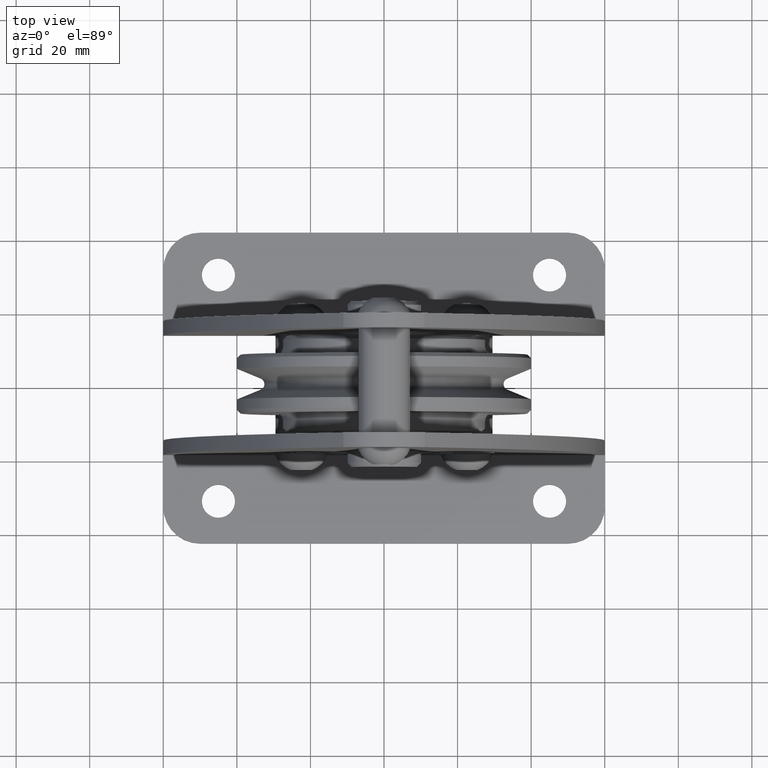
[diagram: clean part render]
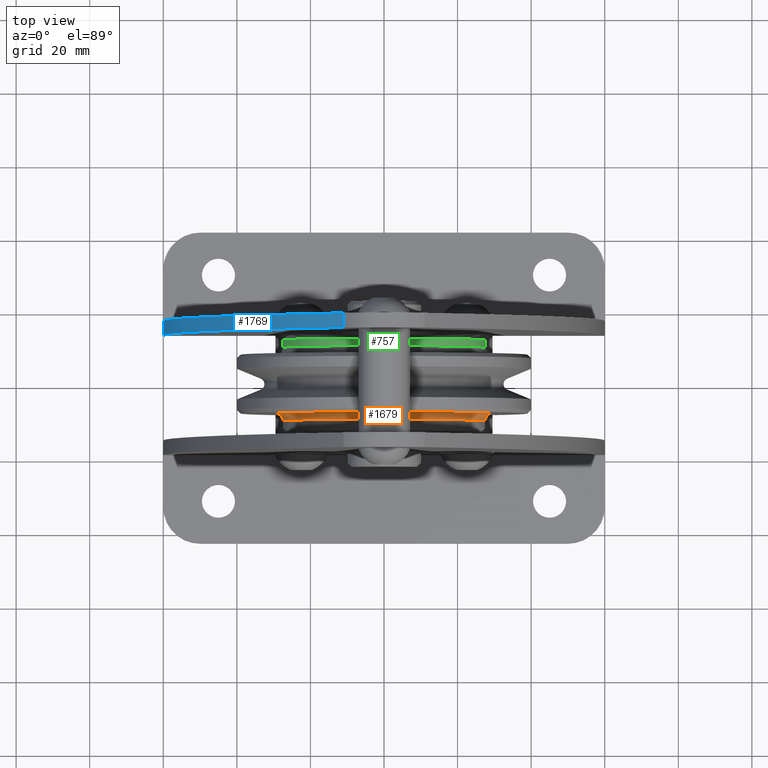
[diagram: same view with three faces highlighted in distinct colors, each labeled with its STEP entity id]
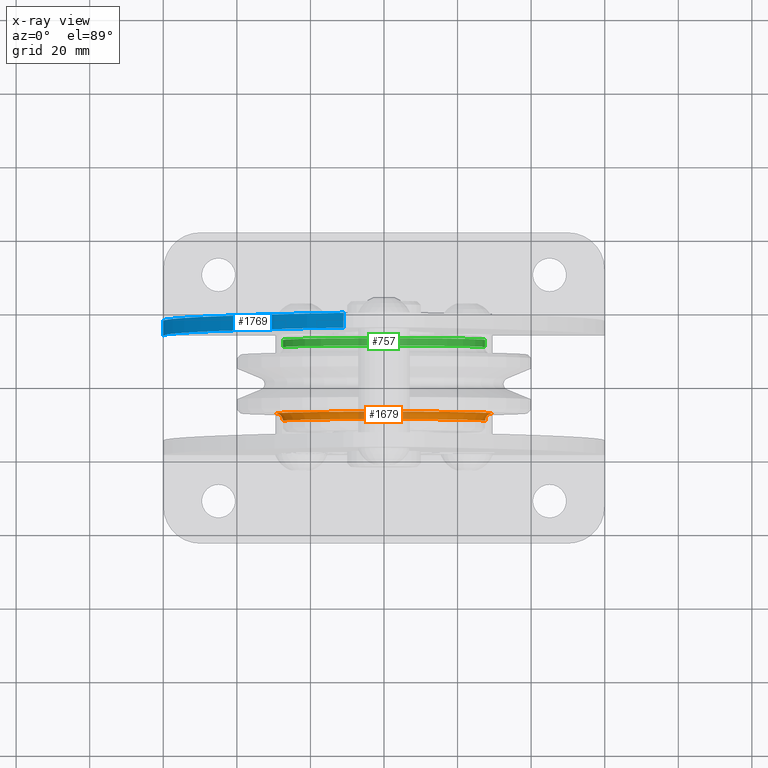
[diagram: x-ray of the same camera — body ghosted, the three highlighted faces saturated]
A machine part, top view with three faces highlighted in distinct colors.
The next image is the same camera in x-ray (body ghosted, the three faces saturated) — at least one of them is partly hidden behind the body in this view.
Their STEP definitions:

[orange] entity #1679 — the highlighted toroidal blend (fillet) surface has major radius 29.5 mm and minor (blend) radius 2 mm.
#1679=ADVANCED_FACE('',(#3561),#3562,.F.);
#3561=FACE_OUTER_BOUND('',#5631,.T.);
#3562=TOROIDAL_SURFACE('',#5632,29.5,2.0);
#5631=EDGE_LOOP('',(#11000,#11001,#11002,#11003));
#5632=AXIS2_PLACEMENT_3D('',#11004,#11005,#11006);
#11000=ORIENTED_EDGE('',*,*,#12580,.T.);
#11001=ORIENTED_EDGE('',*,*,#12577,.F.);
#11002=ORIENTED_EDGE('',*,*,#12582,.T.);
#11003=ORIENTED_EDGE('',*,*,#14353,.T.);
#11004=CARTESIAN_POINT('',(0.0,-10.0,0.0));
#11005=DIRECTION('',(0.0,-1.0,0.0));
#11006=DIRECTION('',(1.0,0.0,0.0));
#12577=EDGE_CURVE('',#15184,#15186,#15187,.T.);
#12580=EDGE_CURVE('',#15190,#15186,#15191,.T.);
#12582=EDGE_CURVE('',#15184,#15192,#15194,.T.);
#14353=EDGE_CURVE('',#15192,#15190,#17823,.T.);
#15184=VERTEX_POINT('',#19724);
#15186=VERTEX_POINT('',#19727);
#15187=CIRCLE('',#19728,27.5);
#15190=VERTEX_POINT('',#19732);
#15191=CIRCLE('',#19733,2.0);
#15192=VERTEX_POINT('',#19734);
#15194=CIRCLE('',#19736,2.0);
#17823=CIRCLE('',#25715,29.5);
#19724=CARTESIAN_POINT('',(27.5,-10.0,0.0));
#19727=CARTESIAN_POINT('',(-27.5,-10.0,3.36777869765522E-015));
#19728=AXIS2_PLACEMENT_3D('',#26819,#26820,#26821);
#19732=CARTESIAN_POINT('',(-29.5,-8.0,3.61270805748469E-015));
#19733=AXIS2_PLACEMENT_3D('',#26823,#26824,#26825);
#19734=CARTESIAN_POINT('',(29.5,-8.0,0.0));
#19736=AXIS2_PLACEMENT_3D('',#26829,#26830,#26831);
#25715=AXIS2_PLACEMENT_3D('',#28770,#28771,#28772);
#26819=CARTESIAN_POINT('',(0.0,-10.0,0.0));
#26820=DIRECTION('',(0.0,-1.0,0.0));
#26821=DIRECTION('',(1.0,0.0,0.0));
#26823=CARTESIAN_POINT('',(-29.5,-10.0,3.61270805748469E-015));
#26824=DIRECTION('',(-1.22464679914735E-016,0.0,-1.0));
#26825=DIRECTION('',(-1.0,0.0,1.22464679914735E-016));
#26829=CARTESIAN_POINT('',(29.5,-10.0,-3.61270805748469E-015));
#26830=DIRECTION('',(-1.22464679914735E-016,-0.0,-1.0));
#26831=DIRECTION('',(1.0,0.0,-1.22464679914735E-016));
#28770=CARTESIAN_POINT('',(0.0,-8.0,0.0));
#28771=DIRECTION('',(0.0,-1.0,0.0));
#28772=DIRECTION('',(1.0,0.0,0.0));

[blue] entity #1769 — the highlighted cylindrical surface (partial cylindrical patch) has radius 185 mm, axis along (0, 1, 0).
#1769=ADVANCED_FACE('',(#3713),#3714,.T.);
#3713=FACE_OUTER_BOUND('',#5783,.T.);
#3714=CYLINDRICAL_SURFACE('',#5784,184.9999999343);
#5783=EDGE_LOOP('',(#11403,#11404,#11405,#11406));
#5784=AXIS2_PLACEMENT_3D('',#11407,#11408,#11409);
#11403=ORIENTED_EDGE('',*,*,#14443,.T.);
#11404=ORIENTED_EDGE('',*,*,#14479,.F.);
#11405=ORIENTED_EDGE('',*,*,#14480,.T.);
#11406=ORIENTED_EDGE('',*,*,#14476,.T.);
#11407=CARTESIAN_POINT('',(124.9999999343,14.25,-60.9999999808002));
#11408=DIRECTION('',(0.0,1.0,0.0));
#11409=DIRECTION('',(-1.0,0.0,-1.02973620057834E-010));
#14443=EDGE_CURVE('',#17931,#17929,#17932,.T.);
#14476=EDGE_CURVE('',#17979,#17931,#17980,.T.);
#14479=EDGE_CURVE('',#17983,#17929,#17984,.T.);
#14480=EDGE_CURVE('',#17983,#17979,#17985,.T.);
#17929=VERTEX_POINT('',#25842);
#17931=VERTEX_POINT('',#25845);
#17932=CIRCLE('',#25846,184.9999999343);
#17979=VERTEX_POINT('',#25909);
#17980=LINE('',#25910,#25911);
#17983=VERTEX_POINT('',#25914);
#17984=LINE('',#25915,#25916);
#17985=CIRCLE('',#25917,184.9999999343);
#25842=CARTESIAN_POINT('',(-60.00000927,18.25,-61.0));
#25845=CARTESIAN_POINT('',(-11.029411760013,18.25,64.3834085300156));
#25846=AXIS2_PLACEMENT_3D('',#28888,#28889,#28890);
#25909=CARTESIAN_POINT('',(-11.029411760013,14.25,64.3834085300156));
#25910=CARTESIAN_POINT('',(-11.029411760013,14.25,64.3834085300156));
#25911=VECTOR('',#28928,1.0);
#25914=CARTESIAN_POINT('',(-60.0,14.25,-61.0));
#25915=CARTESIAN_POINT('',(-60.0,14.25,-61.0));
#25916=VECTOR('',#28932,1.0);
#25917=AXIS2_PLACEMENT_3D('',#28933,#28934,#28935);
#28888=CARTESIAN_POINT('',(124.9999999343,18.25,-60.9999999808002));
#28889=DIRECTION('',(0.0,-1.0,-0.0));
#28890=DIRECTION('',(-1.0,0.0,-1.02973620057834E-010));
#28928=DIRECTION('',(0.0,1.0,0.0));
#28932=DIRECTION('',(0.0,1.0,0.0));
#28933=CARTESIAN_POINT('',(124.9999999343,14.25,-60.9999999808002));
#28934=DIRECTION('',(0.0,1.0,0.0));
#28935=DIRECTION('',(-1.0,0.0,-1.02973620057834E-010));

[green] entity #757 — the highlighted cylindrical surface (partial cylindrical patch) has radius 27.5 mm, axis along (0, -1, 0).
#757=ADVANCED_FACE('',(#2128),#2129,.T.);
#2128=FACE_OUTER_BOUND('',#4198,.T.);
#2129=CYLINDRICAL_SURFACE('',#4199,27.5);
#4198=EDGE_LOOP('',(#6471,#6472,#6473,#6474));
#4199=AXIS2_PLACEMENT_3D('',#6475,#6476,#6477);
#6471=ORIENTED_EDGE('',*,*,#12562,.F.);
#6472=ORIENTED_EDGE('',*,*,#12563,.T.);
#6473=ORIENTED_EDGE('',*,*,#12564,.F.);
#6474=ORIENTED_EDGE('',*,*,#12565,.F.);
#6475=CARTESIAN_POINT('',(0.0,11.0,0.0));
#6476=DIRECTION('',(0.0,-1.0,0.0));
#6477=DIRECTION('',(1.0,0.0,0.0));
#12562=EDGE_CURVE('',#15162,#15156,#15163,.T.);
#12563=EDGE_CURVE('',#15162,#15164,#15165,.T.);
#12564=EDGE_CURVE('',#15153,#15164,#15166,.T.);
#12565=EDGE_CURVE('',#15156,#15153,#15167,.T.);
#15153=VERTEX_POINT('',#19687);
#15156=VERTEX_POINT('',#19690);
#15162=VERTEX_POINT('',#19696);
#15163=LINE('',#19697,#19698);
#15164=VERTEX_POINT('',#19699);
#15165=CIRCLE('',#19700,27.5);
#15166=LINE('',#19701,#19702);
#15167=CIRCLE('',#19703,27.5);
#19687=CARTESIAN_POINT('',(-27.5,10.0,3.36777869765522E-015));
#19690=CARTESIAN_POINT('',(27.5,10.0,0.0));
#19696=CARTESIAN_POINT('',(27.5,12.0,0.0));
#19697=CARTESIAN_POINT('',(27.5,11.0,-3.36777869765522E-015));
#19698=VECTOR('',#26797,1.0);
#19699=CARTESIAN_POINT('',(-27.5,12.0,3.36777869765522E-015));
#19700=AXIS2_PLACEMENT_3D('',#26798,#26799,#26800);
#19701=CARTESIAN_POINT('',(-27.5,11.0,3.36777869765522E-015));
#19702=VECTOR('',#26801,1.0);
#19703=AXIS2_PLACEMENT_3D('',#26802,#26803,#26804);
#26797=DIRECTION('',(0.0,-1.0,0.0));
#26798=CARTESIAN_POINT('',(0.0,12.0,0.0));
#26799=DIRECTION('',(0.0,-1.0,0.0));
#26800=DIRECTION('',(1.0,0.0,0.0));
#26801=DIRECTION('',(-0.0,1.0,-0.0));
#26802=CARTESIAN_POINT('',(0.0,10.0,0.0));
#26803=DIRECTION('',(0.0,-1.0,0.0));
#26804=DIRECTION('',(1.0,0.0,0.0));